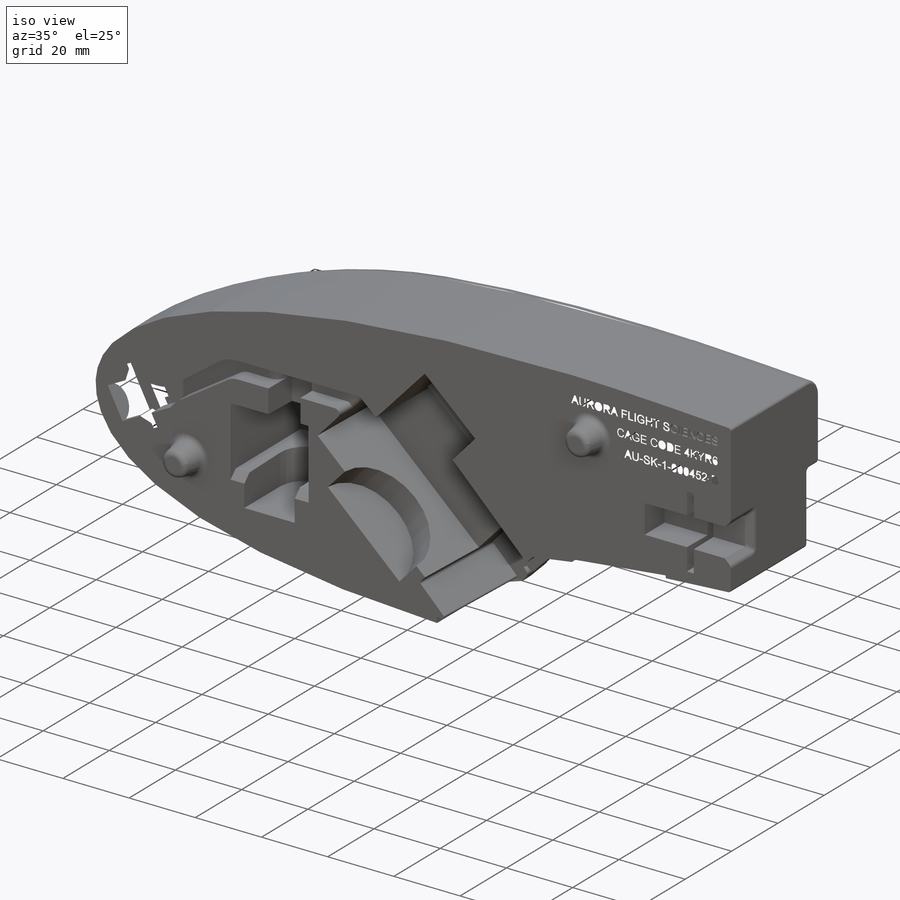
[diagram: iso view]
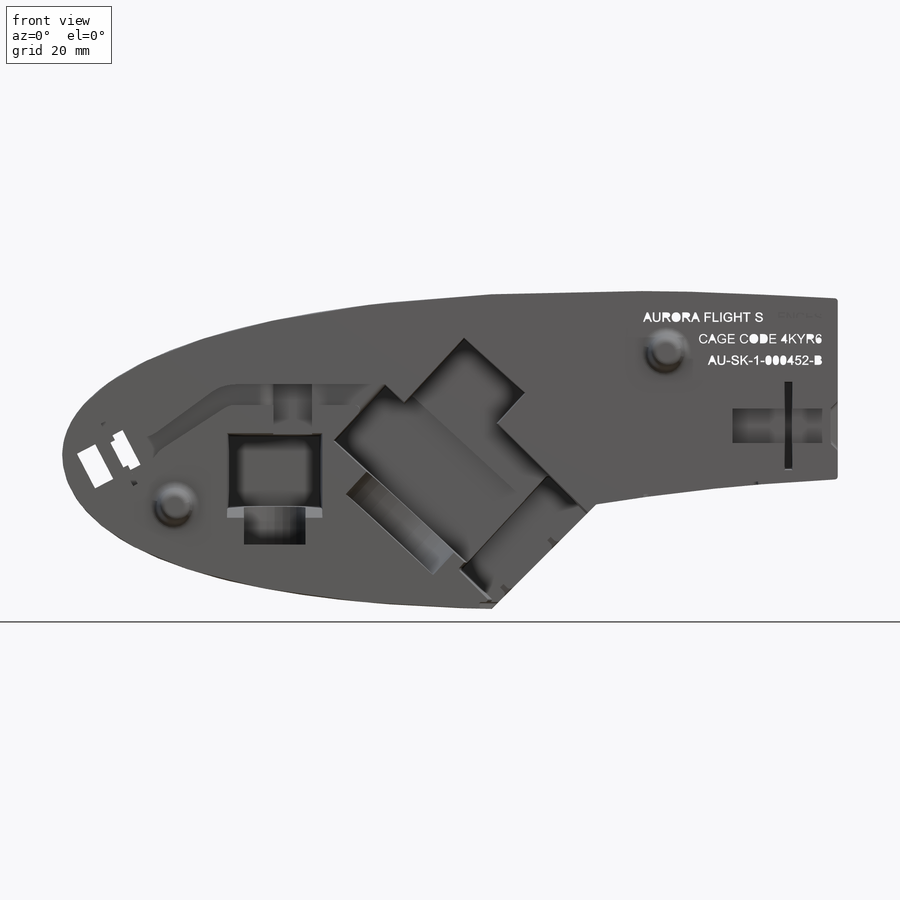
[diagram: front view]
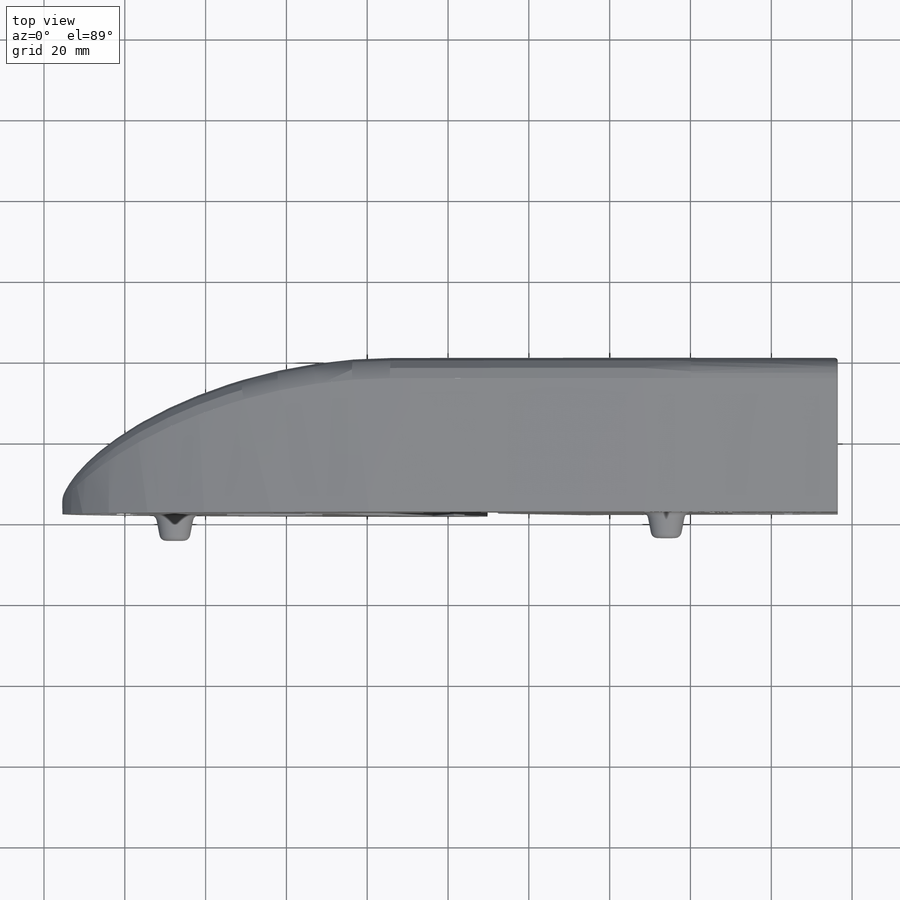
[diagram: top view]
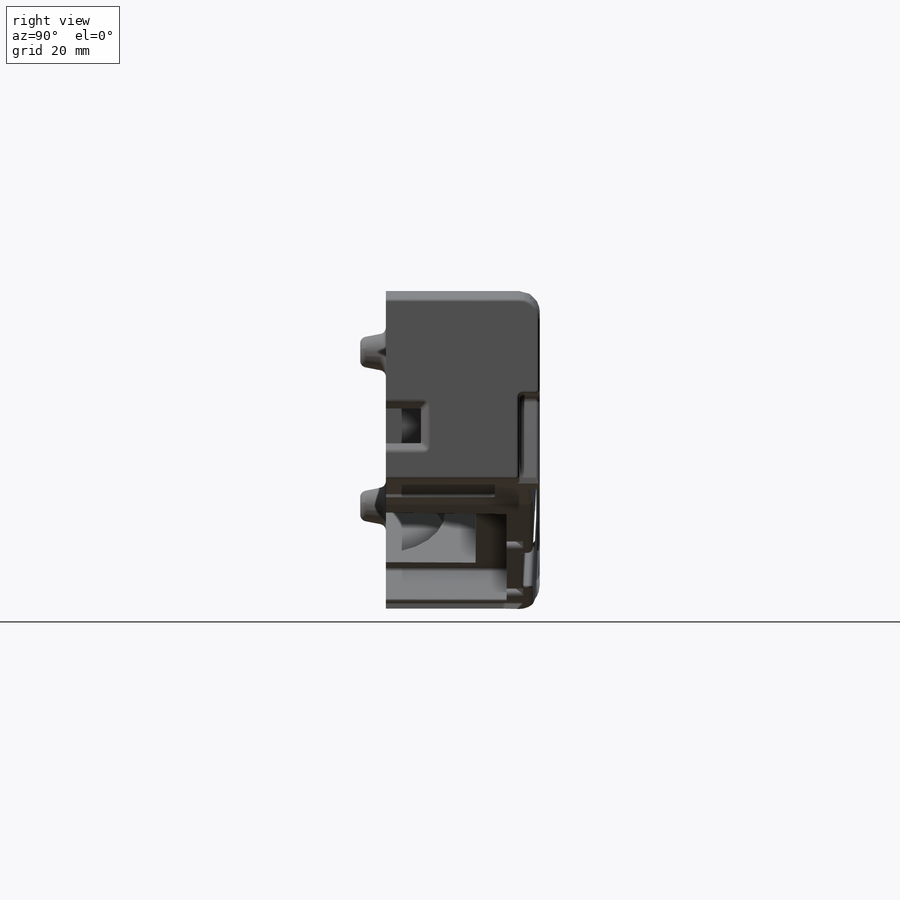
[diagram: right view]
SOLIDWORKS PART (.sldprt)
format: sldprt  version: not decoded by parser v0  size: 3,038,208 bytes
history: native  units: mm
features: sketch x42, cut_extrude x32, fillet x18, extrude x9, chamfer x5, plane x4, material x1 (+22 scaffold rows collapsed; 11 parser-record rows omitted)
feature tree (144):
  scaffold x22  (default folders/planes/origin — collapsed)
  material  "Material <not specified>"
  plane  "mid_plane_fuselage"  Offset=38.1mm
  plane  "XZ_plane"  Offset=25.4mm
  plane  "YZ_plane"  Offset=76.2mm
  parser-record x11  (decoder bookkeeping rows leaked as tree rows — omitted from the tree; the rows remain in map.json)
  sketch  "Sketch1"  dims[c1.D1=0.0mm c1.D2=0.0mm c1.D3=0.0mm c1.D4=0.0mm c1.D5=0.0mm c2.D1=0.0mm]
  extrude  "Extrude1"  Depth=38.1mm
  sketch  "Sketch2"
  cut_extrude  "Extrude3"  [1 undecoded]
  fillet  "Fillet2"  Radius=5.08mm
  sketch  "Sketch4"  dims[c1.D1=~80.818008mm c2.D1=90.0deg c3.D1=299.72mm c3.D2=~77.880514mm c4.D2=85.0deg]
  cut_extrude  "Extrude4"  Depth=50.8mm
  sketch  "Sketch43"  dims[D1=0.508mm]
  cut_extrude  "bracket_pocket"  Depth=1.7272mm
  sketch  "Sketch44"  dims[D1=0.127mm D2=0.127mm]
  cut_extrude  "Cut-Extrude10"  Depth=2.54mm
  sketch  "Sketch57"  dims[c1.D5=1.27mm c1.D6=1.016mm c1.D4=1.27mm c1.D1=0.762mm c1.D2=0.762mm c1.D3=0.762mm c2.D4=0.762mm c2.D1=0.762mm c2.D2=0.762mm c2.D3=0.762mm c3.D4=0.762mm c3.D1=0.762mm c3.D2=0.762mm c3.D3=0.762mm c4.D4=0.762mm c4.D1=1.27mm c4.D2=0.508mm c4.D3=0.508mm c5.D4=0.508mm c5.D5=0.508mm c5.D1=0.508mm c5.D2=0.508mm c5.D3=0.508mm c6.D4=0.508mm c6.D5=0.508mm c6.D1=0.508mm c6.D2=0.508mm c6.D3=0.508mm]
  cut_extrude  "Cut-Extrude14"  Depth=5.0546mm
  sketch  "Sketch60"  dims[c1.D1=1.778mm c1.D2=1.778mm c1.D3=95.0deg c2.D1=1.778mm c2.D2=1.778mm c2.D3=3.429mm c2.D4=3.429mm c3.D1=0.508mm c3.D2=0.508mm]
  cut_extrude  "Extrude29"  Depth=8.89mm
  sketch  "Sketch62"
  cut_extrude  "Extrude31"  [1 undecoded]
  fillet  "Fillet11"  Radius=1.016mm
  fillet  "Fillet13"  Radius=0.508mm
  sketch  "Sketch74"  dims[D1=0.127mm]
  cut_extrude  "Cut-Extrude17"  Depth=12.7mm
  sketch  "Sketch75"  dims[D1=0.127mm]
  cut_extrude  "Extrude38"  [1 undecoded]
  sketch  "Sketch107"  dims[c1.D2=~4.528206mm c2.D2=90.0deg c2.D3=28.5877mm c2.D1=0.762mm]
  cut_extrude  "Extrude59"  Depth=26.9875mm
  fillet  "Fillet44"  Radius=1.27mm
  sketch  "Sketch6"
  cut_extrude  "half_cut"  [1 undecoded]
  sketch  "Sketch31"  dims[D1=~28.114844mm]
  cut_extrude  "IR_cutout"  Depth=22.225mm
  sketch  "Sketch76"  dims[D1=29.464mm D2=19.05mm]
  cut_extrude  "Extrude39"  Depth=7.62mm
  sketch  "Sketch95"  dims[D1=0.127mm D2=0.127mm D3=0.0mm D4=0.0mm]
  cut_extrude  "Cut-Extrude21"  Depth=8.255mm
  sketch  "Sketch108"
  cut_extrude  "Extrude60"  Depth=3.81mm
  sketch  "Sketch96"  dims[c1.D1=0.254mm c1.D2=0.254mm c2.D1=~7.58748mm c3.D1=108.0deg c4.D1=~7.58748mm c5.D1=108.0deg c5.D2=~6.607032mm c6.D2=108.0deg c6.D3=8.89mm]
  cut_extrude  "Extrude51"  Depth=7.112mm
  plane  "Plane1"
  chamfer  "Chamfer2"  Distance=2.54mm
  sketch  "Sketch45"  dims[D1=0.127mm]
  cut_extrude  "PCB_cutout_1"  [1 undecoded]
  sketch  "Sketch77"
  extrude  "Extrude40"  [1 undecoded]
  sketch  "Sketch66"  dims[D1=0.127mm D2=0.127mm D3=0.127mm D4=0.127mm]
  cut_extrude  "Extrude34"  Depth=2.286mm
  chamfer  "Chamfer1"  Distance=2.54mm Angle=45deg
  fillet  "Fillet17"  Radius=1.143mm
  sketch  "Sketch87"
  extrude  "boss_reflected"  Depth=2.54mm
  sketch  "Sketch90"
  cut_extrude  "Cut-Extrude20"  Depth=8.636mm
  sketch  "Sketch88"
  cut_extrude  "Cut-Extrude19"  Depth=15.494mm
  chamfer  "Chamfer4"  Distance=1.778mm Angle=45deg
  fillet  "Fillet47"  Radius=1.27mm
  fillet  "Fillet22"  Radius=1.27mm
  fillet  "Fillet21"  Radius=0.508mm
  fillet  "Fillet19"  Radius=1.27mm
  fillet  "Fillet28"  Radius=1.016mm
  fillet  "Fillet30"  Radius=0.762mm
  fillet  "Fillet35"  Radius=0.762mm
  fillet  "Fillet46"  Radius=3.81mm
  sketch  "Sketch63"  dims[D1=9.525mm D2=9.525mm]
  extrude  "Extrude32"  Depth=6.35mm
  sketch  "Sketch101"  dims[c1.D5=7.62mm c1.D6=7.62mm c1.D3=5.08mm c1.D4=5.08mm c2.D3=4.572mm c2.D4=6.35mm c2.D5=~7.667819mm c3.D3=5.842mm c3.D1=2.54mm c3.D2=2.54mm c4.D1=2.54mm c4.D2=2.54mm c5.D1=2.54mm c5.D2=2.54mm c6.D1=2.54mm c6.D2=2.54mm]
  cut_extrude  "Extrude54"  Depth=5.08mm
  sketch  "Sketch92"  dims[D1=4.318mm D2=4.318mm]
  cut_extrude  "Extrude48"  Depth=8.128mm
  sketch  "Sketch102"
  cut_extrude  "Extrude55"  Depth=10.16mm
  sketch  "Sketch104"  dims[D1=0.0mm D2=0.0mm]
  cut_extrude  "Extrude56"  [1 undecoded]
  sketch  "Sketch97"
  cut_extrude  "Cut-Extrude22"  Depth=29.21mm
  sketch  "Sketch100"  dims[D1=15.24mm]
  cut_extrude  "Extrude53"  Depth=23.114mm
  fillet  "Fillet39"  Radius=7.62mm
  chamfer  "Chamfer3"  Distance=2.921mm Angle=45deg
  fillet  "Fillet16"  Radius=1.651mm
  fillet  "Fillet41"  Radius=3.175mm
  fillet  "Fillet42"  Radius=1.27mm
  fillet  "Fillet45"  Radius=1.27mm
  sketch  "Sketch94"  dims[D1=3.81mm D2=5.08mm]
  cut_extrude  "TEXT"  Depth=0.762mm
  sketch  "Sketch123"  dims[D2=24.13mm D1=0.0mm]
  cut_extrude  "Extrude76"  Depth=1.016mm
  sketch  "Sketch124"  dims[D2=3.81mm D1=5.08mm]
  cut_extrude  "Extrude77"  [1 undecoded]
  sketch  "Sketch127"
  sketch  "Sketch126"
  extrude  "fill_in_1"  [1 undecoded]
  sketch  "Sketch125"
  extrude  "fill_in_2"  Depth=8.382mm
  sketch  "Sketch128"  dims[c1.D1=~5.089481mm c2.D1=12.5deg c2.D2=~4.317885mm c3.D2=105.0deg c3.D3=~1.006407mm c4.D3=90.0deg c4.D1=~10.384991mm c5.D1=12.5deg c6.D1=4.826mm c6.D2=12.7mm]
  cut_extrude  "Extrude81"  Depth=5.334mm
  sketch  "Sketch130"  dims[D1=5.08mm]
  extrude  "Extrude83"  Depth=5.08mm
  sketch  "Sketch131"
  extrude  "Extrude84"  Depth=5.08mm
  sketch  "Sketch133"
  extrude  "Extrude85"  Depth=5.08mm
  sketch  "Sketch134"  dims[D1=8.6106mm D2=8.7122mm D3=8.7122mm D4=1.27mm]
  cut_extrude  "Extrude86"  Depth=8.255mm
  sketch  "Sketch135"  dims[D1=3.4671mm D2=3.4671mm]
  cut_extrude  "Extrude87"  Depth=3.81mm
  chamfer  "Chamfer5"  Distance=2.54mm Angle=45deg
decode coverage: 82 of 106 modeling features carry decoded parameters
note: ~ marks probable driven/reference dimensions
note: 9 parameter values undecoded
summary: no parameter record found for 9 features
note: suppression state not decoded; provenance and decode notes live in map.json
